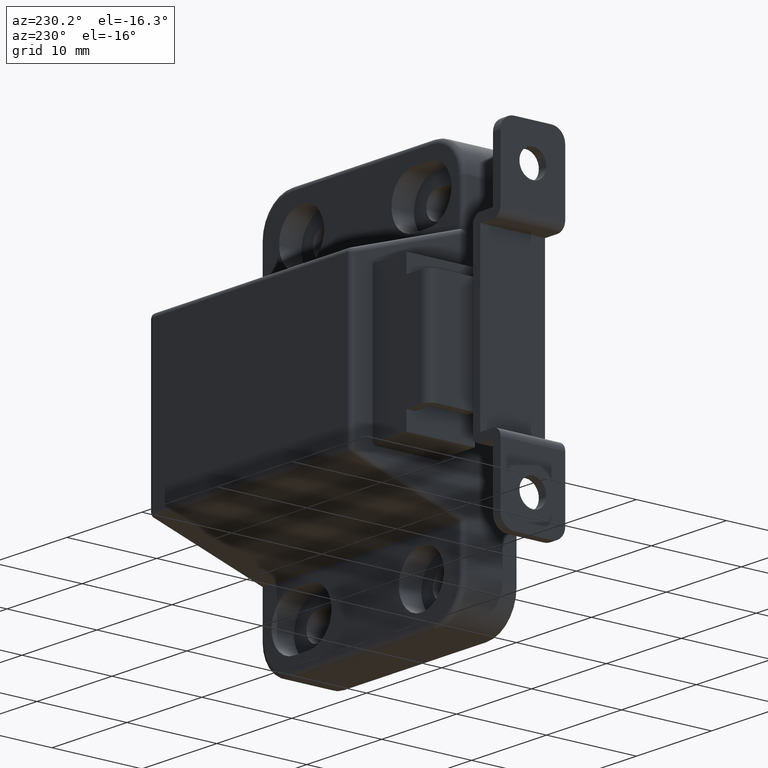
[diagram: clean part render]
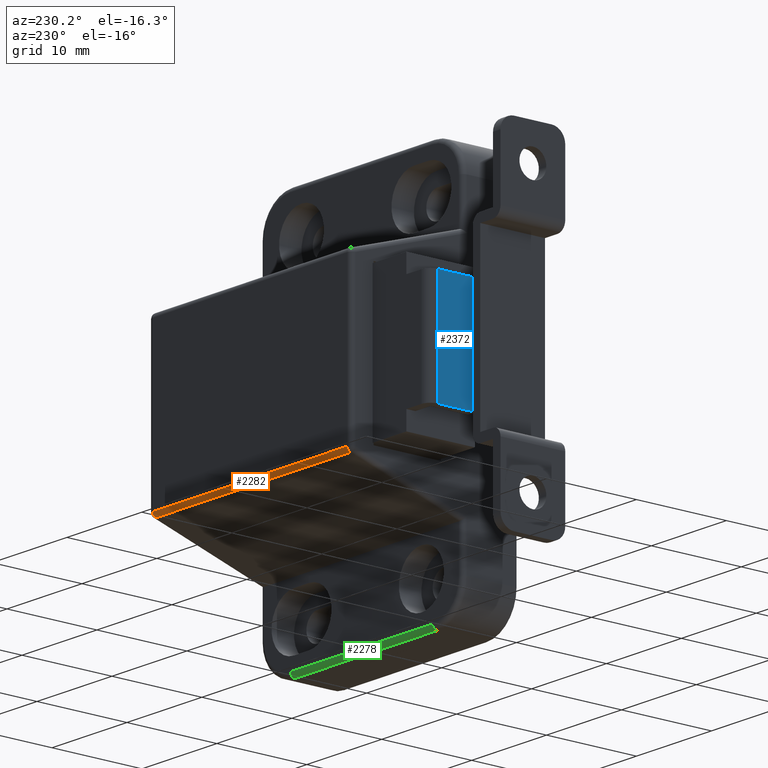
[diagram: same view with three faces highlighted in distinct colors, each labeled with its STEP entity id]
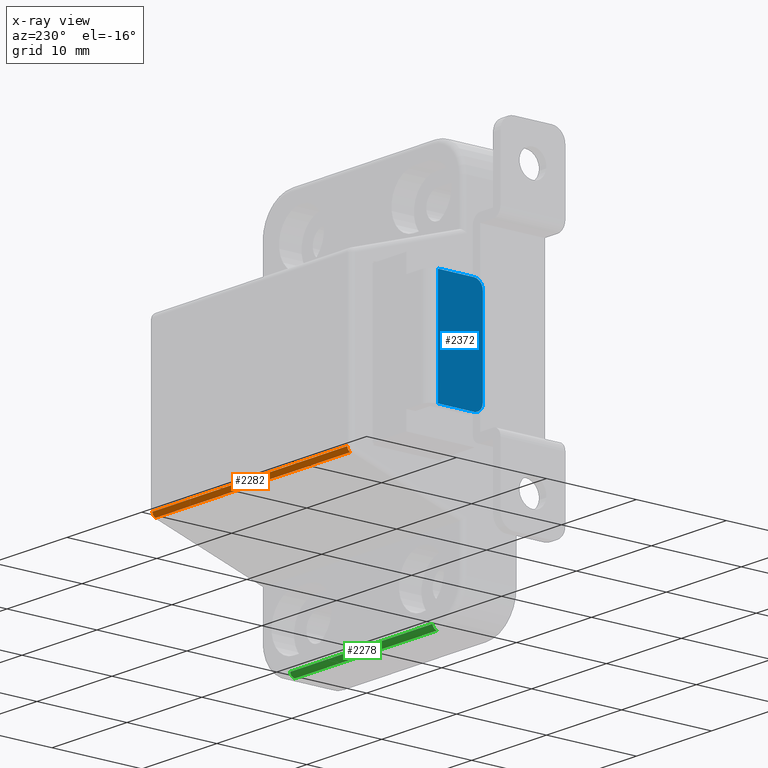
[diagram: x-ray of the same camera — body ghosted, the three highlighted faces saturated]
A machine part, auxiliary view with three faces highlighted in distinct colors.
The next image is the same camera in x-ray (body ghosted, the three faces saturated) — at least one of them is partly hidden behind the body in this view.
Their STEP definitions:

[orange] entity #2282 — the highlighted cylindrical surface (edge-blend (fillet) strip) has radius 0.5 mm, axis along (1, 0, 0).
#190=LINE('',#3465,#417);
#191=LINE('',#3466,#418);
#417=VECTOR('',#2757,26.);
#418=VECTOR('',#2758,26.);
#635=CYLINDRICAL_SURFACE('',#2450,0.5);
#690=FACE_OUTER_BOUND('',#828,.T.);
#828=EDGE_LOOP('',(#1669,#1670,#1671,#1672));
#988=CIRCLE('',#2426,0.499999999999999);
#989=CIRCLE('',#2429,0.5);
#1085=VERTEX_POINT('',#3407);
#1086=VERTEX_POINT('',#3409);
#1087=VERTEX_POINT('',#3416);
#1088=VERTEX_POINT('',#3417);
#1302=EDGE_CURVE('',#1085,#1086,#988,.F.);
#1305=EDGE_CURVE('',#1087,#1088,#989,.F.);
#1330=EDGE_CURVE('',#1088,#1085,#190,.T.);
#1331=EDGE_CURVE('',#1086,#1087,#191,.T.);
#1669=ORIENTED_EDGE('',*,*,#1305,.T.);
#1670=ORIENTED_EDGE('',*,*,#1330,.T.);
#1671=ORIENTED_EDGE('',*,*,#1302,.T.);
#1672=ORIENTED_EDGE('',*,*,#1331,.T.);
#2282=ADVANCED_FACE('',(#690),#635,.T.);
#2426=AXIS2_PLACEMENT_3D('',#3411,#2693,#2694);
#2429=AXIS2_PLACEMENT_3D('',#3418,#2701,#2702);
#2450=AXIS2_PLACEMENT_3D('',#3464,#2755,#2756);
#2693=DIRECTION('center_axis',(0.,0.,1.));
#2694=DIRECTION('ref_axis',(-0.951708617760551,0.307002779922759,0.));
#2701=DIRECTION('center_axis',(0.,0.,-1.));
#2702=DIRECTION('ref_axis',(0.,1.,0.));
#2755=DIRECTION('center_axis',(0.,0.,-1.));
#2756=DIRECTION('ref_axis',(-0.588641325459416,0.808394328259038,0.));
#2757=DIRECTION('',(0.,0.,1.));
#2758=DIRECTION('',(0.,0.,-1.));
#3407=CARTESIAN_POINT('',(-9.11177374517374,18.0535013899614,-0.5));
#3409=CARTESIAN_POINT('',(-8.63591943629346,18.4,-0.5));
#3411=CARTESIAN_POINT('Origin',(-8.63591943629346,17.9,-0.5));
#3416=CARTESIAN_POINT('',(-8.63591943629346,18.4,-26.5));
#3417=CARTESIAN_POINT('',(-9.11177374517374,18.0535013899614,-26.5));
#3418=CARTESIAN_POINT('Origin',(-8.63591943629346,17.9,-26.5));
#3464=CARTESIAN_POINT('Origin',(-8.63591943629346,17.9,0.));
#3465=CARTESIAN_POINT('',(-9.11177374517374,18.0535013899614,0.));
#3466=CARTESIAN_POINT('',(-8.63591943629346,18.4,0.));

[blue] entity #2372 — the highlighted planar face has unit normal (1, 0, -0).
#133=PLANE('',#2612);
#320=LINE('',#3889,#547);
#323=LINE('',#3895,#550);
#324=LINE('',#3897,#551);
#325=LINE('',#3899,#552);
#547=VECTOR('',#3209,10.);
#550=VECTOR('',#3214,3.99999999999999);
#551=VECTOR('',#3215,12.);
#552=VECTOR('',#3216,3.99999999999999);
#780=FACE_OUTER_BOUND('',#947,.T.);
#947=EDGE_LOOP('',(#2097,#2098,#2099,#2100,#2101,#2102));
#1068=CIRCLE('',#2609,1.);
#1070=CIRCLE('',#2613,1.);
#1230=VERTEX_POINT('',#3879);
#1231=VERTEX_POINT('',#3880);
#1234=VERTEX_POINT('',#3888);
#1236=VERTEX_POINT('',#3894);
#1237=VERTEX_POINT('',#3896);
#1238=VERTEX_POINT('',#3898);
#1526=EDGE_CURVE('',#1230,#1231,#1068,.T.);
#1530=EDGE_CURVE('',#1231,#1234,#320,.T.);
#1533=EDGE_CURVE('',#1236,#1230,#323,.T.);
#1534=EDGE_CURVE('',#1236,#1237,#324,.T.);
#1535=EDGE_CURVE('',#1237,#1238,#325,.T.);
#1536=EDGE_CURVE('',#1234,#1238,#1070,.T.);
#2097=ORIENTED_EDGE('',*,*,#1526,.F.);
#2098=ORIENTED_EDGE('',*,*,#1533,.F.);
#2099=ORIENTED_EDGE('',*,*,#1534,.T.);
#2100=ORIENTED_EDGE('',*,*,#1535,.T.);
#2101=ORIENTED_EDGE('',*,*,#1536,.F.);
#2102=ORIENTED_EDGE('',*,*,#1530,.F.);
#2372=ADVANCED_FACE('',(#780),#133,.F.);
#2609=AXIS2_PLACEMENT_3D('',#3881,#3201,#3202);
#2612=AXIS2_PLACEMENT_3D('',#3893,#3212,#3213);
#2613=AXIS2_PLACEMENT_3D('',#3900,#3217,#3218);
#3201=DIRECTION('center_axis',(0.,-1.,0.));
#3202=DIRECTION('ref_axis',(0.707106781186548,0.,0.707106781186547));
#3209=DIRECTION('',(-1.,0.,0.));
#3212=DIRECTION('center_axis',(0.,-1.,0.));
#3213=DIRECTION('ref_axis',(0.,0.,-1.));
#3214=DIRECTION('',(0.,0.,1.));
#3215=DIRECTION('',(-1.,0.,0.));
#3216=DIRECTION('',(0.,0.,1.));
#3217=DIRECTION('center_axis',(0.,-1.,0.));
#3218=DIRECTION('ref_axis',(-0.707106781186548,0.,0.707106781186547));
#3879=CARTESIAN_POINT('',(12.,32.,5.));
#3880=CARTESIAN_POINT('',(11.,32.,6.));
#3881=CARTESIAN_POINT('Origin',(11.,32.,5.));
#3888=CARTESIAN_POINT('',(1.,32.,6.));
#3889=CARTESIAN_POINT('',(12.,32.,6.));
#3893=CARTESIAN_POINT('Origin',(12.,32.,1.00000000000001));
#3894=CARTESIAN_POINT('',(12.,32.,1.00000000000001));
#3895=CARTESIAN_POINT('',(12.,32.,1.00000000000001));
#3896=CARTESIAN_POINT('',(0.,32.,1.00000000000001));
#3897=CARTESIAN_POINT('',(12.,32.,1.00000000000001));
#3898=CARTESIAN_POINT('',(0.,32.,5.));
#3899=CARTESIAN_POINT('',(0.,32.,1.00000000000001));
#3900=CARTESIAN_POINT('Origin',(1.,32.,5.));

[green] entity #2278 — the highlighted cylindrical surface (edge-blend (fillet) strip) has radius 0.5 mm, axis along (-1, 0, -0).
#184=LINE('',#3450,#411);
#185=LINE('',#3451,#412);
#411=VECTOR('',#2737,19.);
#412=VECTOR('',#2738,19.);
#632=CYLINDRICAL_SURFACE('',#2442,0.5);
#686=FACE_OUTER_BOUND('',#824,.T.);
#824=EDGE_LOOP('',(#1653,#1654,#1655,#1656));
#993=CIRCLE('',#2439,0.499999999999994);
#996=CIRCLE('',#2443,0.499999999999998);
#1096=VERTEX_POINT('',#3441);
#1097=VERTEX_POINT('',#3442);
#1098=VERTEX_POINT('',#3447);
#1099=VERTEX_POINT('',#3448);
#1317=EDGE_CURVE('',#1096,#1097,#993,.T.);
#1320=EDGE_CURVE('',#1098,#1099,#996,.T.);
#1321=EDGE_CURVE('',#1099,#1097,#184,.T.);
#1322=EDGE_CURVE('',#1096,#1098,#185,.T.);
#1653=ORIENTED_EDGE('',*,*,#1320,.T.);
#1654=ORIENTED_EDGE('',*,*,#1321,.T.);
#1655=ORIENTED_EDGE('',*,*,#1317,.F.);
#1656=ORIENTED_EDGE('',*,*,#1322,.T.);
#2278=ADVANCED_FACE('',(#686),#632,.T.);
#2439=AXIS2_PLACEMENT_3D('',#3443,#2727,#2728);
#2442=AXIS2_PLACEMENT_3D('',#3446,#2733,#2734);
#2443=AXIS2_PLACEMENT_3D('',#3449,#2735,#2736);
#2727=DIRECTION('center_axis',(0.,0.,-1.));
#2728=DIRECTION('ref_axis',(-1.,0.,0.));
#2733=DIRECTION('center_axis',(-1.11022302462516E-15,0.,1.));
#2734=DIRECTION('ref_axis',(-0.707106781186546,0.707106781186549,-7.85046229341888E-16));
#2735=DIRECTION('center_axis',(1.11022302462516E-15,0.,-1.));
#2736=DIRECTION('ref_axis',(-1.,0.,-1.11022302462516E-15));
#2737=DIRECTION('',(1.11022302462516E-15,0.,-1.));
#2738=DIRECTION('',(-1.11022302462516E-15,0.,1.));
#3441=CARTESIAN_POINT('',(-21.85,5.5,-23.));
#3442=CARTESIAN_POINT('',(-21.35,6.,-23.));
#3443=CARTESIAN_POINT('Origin',(-21.35,5.5,-23.));
#3446=CARTESIAN_POINT('Origin',(-21.35,5.5,-18.25));
#3447=CARTESIAN_POINT('',(-21.85,5.5,-4.));
#3448=CARTESIAN_POINT('',(-21.35,6.,-4.));
#3449=CARTESIAN_POINT('Origin',(-21.35,5.5,-4.));
#3450=CARTESIAN_POINT('',(-21.35,6.,-18.25));
#3451=CARTESIAN_POINT('',(-21.85,5.5,-18.25));